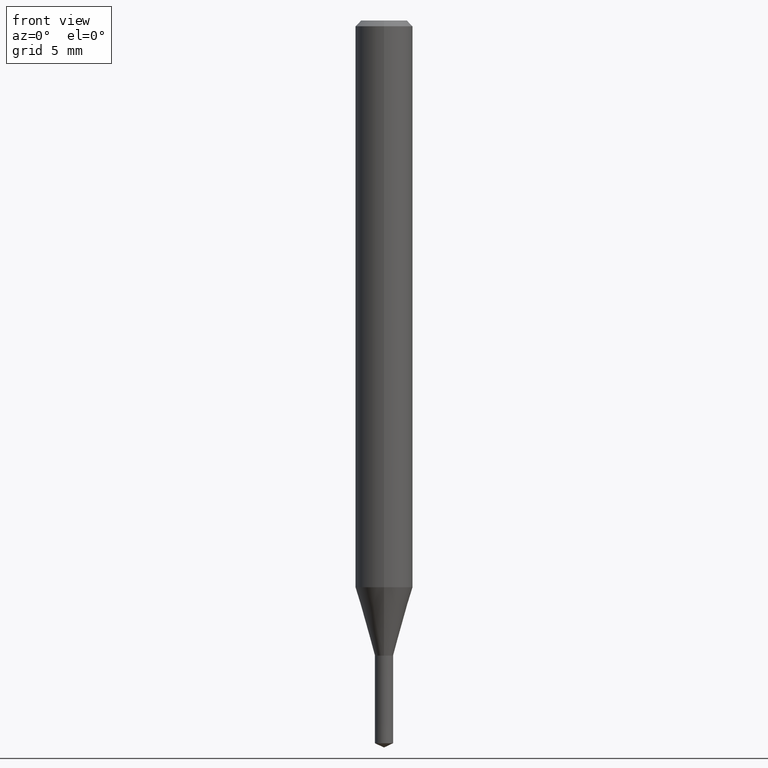
[diagram: clean part render]
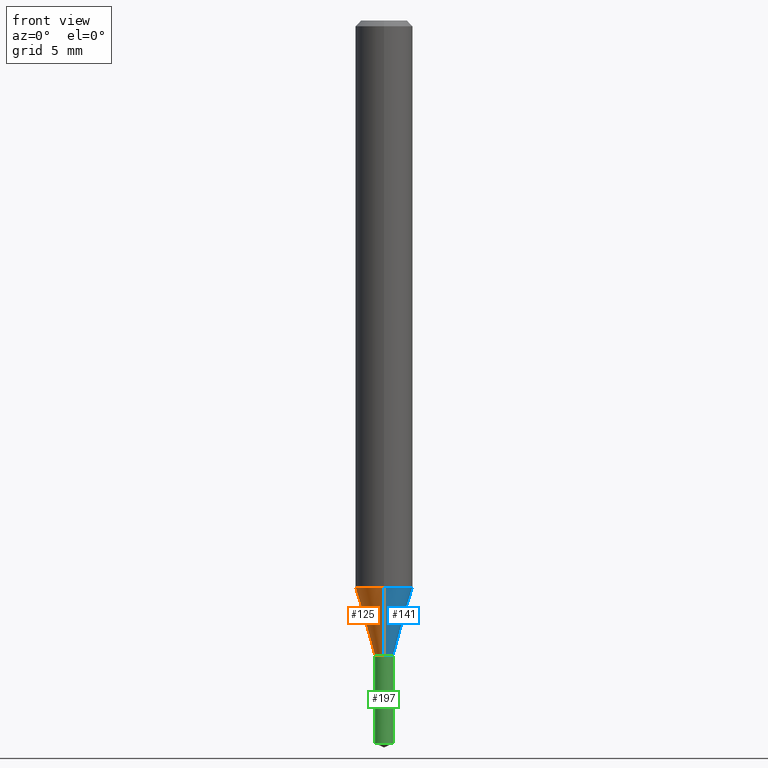
[diagram: same view with three faces highlighted in distinct colors, each labeled with its STEP entity id]
A machine part, front view with three faces highlighted in distinct colors.
Their STEP definitions:

[orange] entity #125 — the highlighted conical surface has half-angle 16.002 deg.
#109=EDGE_CURVE('',#205,#193,#247,.T.);
#117=EDGE_CURVE('',#153,#147,#255,.T.);
#125=ADVANCED_FACE('',(#264),#265,.T.);
#135=EDGE_CURVE('',#205,#147,#277,.T.);
#147=VERTEX_POINT('',#292);
#151=EDGE_CURVE('',#193,#153,#296,.T.);
#153=VERTEX_POINT('',#298);
#193=VERTEX_POINT('',#342);
#205=VERTEX_POINT('',#355);
#247=LINE('',#399,#400);
#255=LINE('',#412,#413);
#264=FACE_OUTER_BOUND('',#424,.T.);
#265=CONICAL_SURFACE('',#425,0.9875,0.27928721316379);
#277=CIRCLE('',#442,0.475);
#292=CARTESIAN_POINT('',(0.0,0.475,-33.1991339745962));
#296=CIRCLE('',#462,1.5);
#298=CARTESIAN_POINT('',(0.0,1.5,-29.625));
#342=CARTESIAN_POINT('',(1.83690953073357E-016,-1.5,-29.625));
#355=CARTESIAN_POINT('',(5.81688018065629E-017,-0.475,-33.1991339745962));
#399=CARTESIAN_POINT('',(1.2092987743996E-016,-0.9875,-31.4120669872981));
#400=VECTOR('',#563,1.0);
#412=CARTESIAN_POINT('',(-1.2092987743996E-016,0.9875,-31.4120669872981));
#413=VECTOR('',#568,1.0);
#424=EDGE_LOOP('',(#579,#580,#581,#582));
#425=AXIS2_PLACEMENT_3D('',#583,#584,#585);
#442=AXIS2_PLACEMENT_3D('',#602,#603,#604);
#462=AXIS2_PLACEMENT_3D('',#629,#630,#631);
#563=DIRECTION('',(3.37587908014451E-017,-0.275670550753501,0.961252176823159));
#568=DIRECTION('',(3.37587908014451E-017,-0.275670550753501,-0.961252176823159));
#579=ORIENTED_EDGE('',*,*,#117,.T.);
#580=ORIENTED_EDGE('',*,*,#135,.F.);
#581=ORIENTED_EDGE('',*,*,#109,.T.);
#582=ORIENTED_EDGE('',*,*,#151,.T.);
#583=CARTESIAN_POINT('',(0.0,0.0,-31.4120669872981));
#584=DIRECTION('',(-0.0,-0.0,1.0));
#585=DIRECTION('',(0.0,1.0,0.0));
#602=CARTESIAN_POINT('',(0.0,0.0,-33.1991339745962));
#603=DIRECTION('',(0.0,0.0,-1.0));
#604=DIRECTION('',(0.0,1.0,0.0));
#629=CARTESIAN_POINT('',(0.0,0.0,-29.625));
#630=DIRECTION('',(0.0,0.0,-1.0));
#631=DIRECTION('',(0.0,1.0,0.0));

[blue] entity #141 — the highlighted conical surface has half-angle 16.002 deg.
#109=EDGE_CURVE('',#205,#193,#247,.T.);
#117=EDGE_CURVE('',#153,#147,#255,.T.);
#141=ADVANCED_FACE('',(#284),#285,.T.);
#147=VERTEX_POINT('',#292);
#153=VERTEX_POINT('',#298);
#167=EDGE_CURVE('',#153,#193,#314,.T.);
#179=EDGE_CURVE('',#147,#205,#326,.T.);
#193=VERTEX_POINT('',#342);
#205=VERTEX_POINT('',#355);
#247=LINE('',#399,#400);
#255=LINE('',#412,#413);
#284=FACE_OUTER_BOUND('',#449,.T.);
#285=CONICAL_SURFACE('',#450,0.9875,0.27928721316379);
#292=CARTESIAN_POINT('',(0.0,0.475,-33.1991339745962));
#298=CARTESIAN_POINT('',(0.0,1.5,-29.625));
#314=CIRCLE('',#481,1.5);
#326=CIRCLE('',#499,0.475);
#342=CARTESIAN_POINT('',(1.83690953073357E-016,-1.5,-29.625));
#355=CARTESIAN_POINT('',(5.81688018065629E-017,-0.475,-33.1991339745962));
#399=CARTESIAN_POINT('',(1.2092987743996E-016,-0.9875,-31.4120669872981));
#400=VECTOR('',#563,1.0);
#412=CARTESIAN_POINT('',(-1.2092987743996E-016,0.9875,-31.4120669872981));
#413=VECTOR('',#568,1.0);
#449=EDGE_LOOP('',(#614,#615,#616,#617));
#450=AXIS2_PLACEMENT_3D('',#618,#619,#620);
#481=AXIS2_PLACEMENT_3D('',#650,#651,#652);
#499=AXIS2_PLACEMENT_3D('',#663,#664,#665);
#563=DIRECTION('',(3.37587908014451E-017,-0.275670550753501,0.961252176823159));
#568=DIRECTION('',(3.37587908014451E-017,-0.275670550753501,-0.961252176823159));
#614=ORIENTED_EDGE('',*,*,#117,.F.);
#615=ORIENTED_EDGE('',*,*,#167,.T.);
#616=ORIENTED_EDGE('',*,*,#109,.F.);
#617=ORIENTED_EDGE('',*,*,#179,.F.);
#618=CARTESIAN_POINT('',(0.0,0.0,-31.4120669872981));
#619=DIRECTION('',(-0.0,-0.0,1.0));
#620=DIRECTION('',(0.0,1.0,0.0));
#650=CARTESIAN_POINT('',(0.0,0.0,-29.625));
#651=DIRECTION('',(0.0,0.0,-1.0));
#652=DIRECTION('',(0.0,1.0,0.0));
#663=CARTESIAN_POINT('',(0.0,0.0,-33.1991339745962));
#664=DIRECTION('',(0.0,0.0,-1.0));
#665=DIRECTION('',(0.0,1.0,0.0));

[green] entity #197 — the highlighted conical surface has half-angle 0.013 deg.
#93=EDGE_CURVE('',#189,#139,#228,.T.);
#95=EDGE_CURVE('',#169,#145,#230,.T.);
#139=VERTEX_POINT('',#282);
#145=VERTEX_POINT('',#290);
#169=VERTEX_POINT('',#316);
#181=EDGE_CURVE('',#145,#189,#328,.T.);
#189=VERTEX_POINT('',#338);
#197=ADVANCED_FACE('',(#346),#347,.T.);
#199=EDGE_CURVE('',#169,#139,#349,.T.);
#228=LINE('',#373,#374);
#230=LINE('',#377,#378);
#282=CARTESIAN_POINT('',(-0.475,0.0,-37.77850386));
#290=CARTESIAN_POINT('',(0.476,5.82912624419452E-017,-33.2));
#316=CARTESIAN_POINT('',(0.475,5.81688018065629E-017,-37.77850386));
#328=CIRCLE('',#502,0.476);
#338=CARTESIAN_POINT('',(-0.476,0.0,-33.2));
#346=FACE_OUTER_BOUND('',#522,.T.);
#347=CONICAL_SURFACE('',#523,0.4755,0.000218411956105403);
#349=CIRCLE('',#526,0.475);
#373=CARTESIAN_POINT('',(-0.4755,-5.8230032124254E-017,-35.48925193));
#374=VECTOR('',#536,1.0);
#377=CARTESIAN_POINT('',(0.4755,5.8230032124254E-017,-35.48925193));
#378=VECTOR('',#537,1.0);
#502=AXIS2_PLACEMENT_3D('',#666,#667,#668);
#522=EDGE_LOOP('',(#690,#691,#692,#693));
#523=AXIS2_PLACEMENT_3D('',#694,#695,#696);
#526=AXIS2_PLACEMENT_3D('',#697,#698,#699);
#536=DIRECTION('',(0.000218411954368891,2.67468667070907E-020,-0.999999976148109));
#537=DIRECTION('',(0.000218411954368891,2.67468667070907E-020,0.999999976148109));
#666=CARTESIAN_POINT('',(0.0,0.0,-33.2));
#667=DIRECTION('',(0.0,0.0,-1.0));
#668=DIRECTION('',(-1.0,0.0,0.0));
#690=ORIENTED_EDGE('',*,*,#93,.T.);
#691=ORIENTED_EDGE('',*,*,#199,.F.);
#692=ORIENTED_EDGE('',*,*,#95,.T.);
#693=ORIENTED_EDGE('',*,*,#181,.T.);
#694=CARTESIAN_POINT('',(0.0,0.0,-35.48925193));
#695=DIRECTION('',(-0.0,-0.0,1.0));
#696=DIRECTION('',(-1.0,0.0,0.0));
#697=CARTESIAN_POINT('',(0.0,0.0,-37.77850386));
#698=DIRECTION('',(0.0,0.0,-1.0));
#699=DIRECTION('',(-1.0,0.0,0.0));